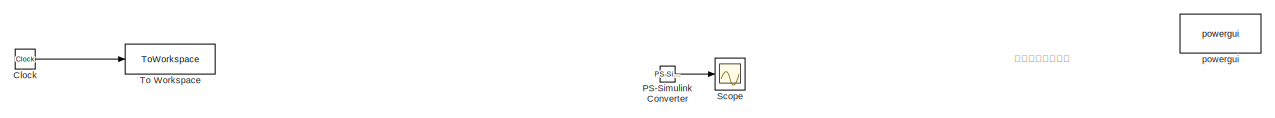
[diagram: root canvas - part 1/5, top left region]
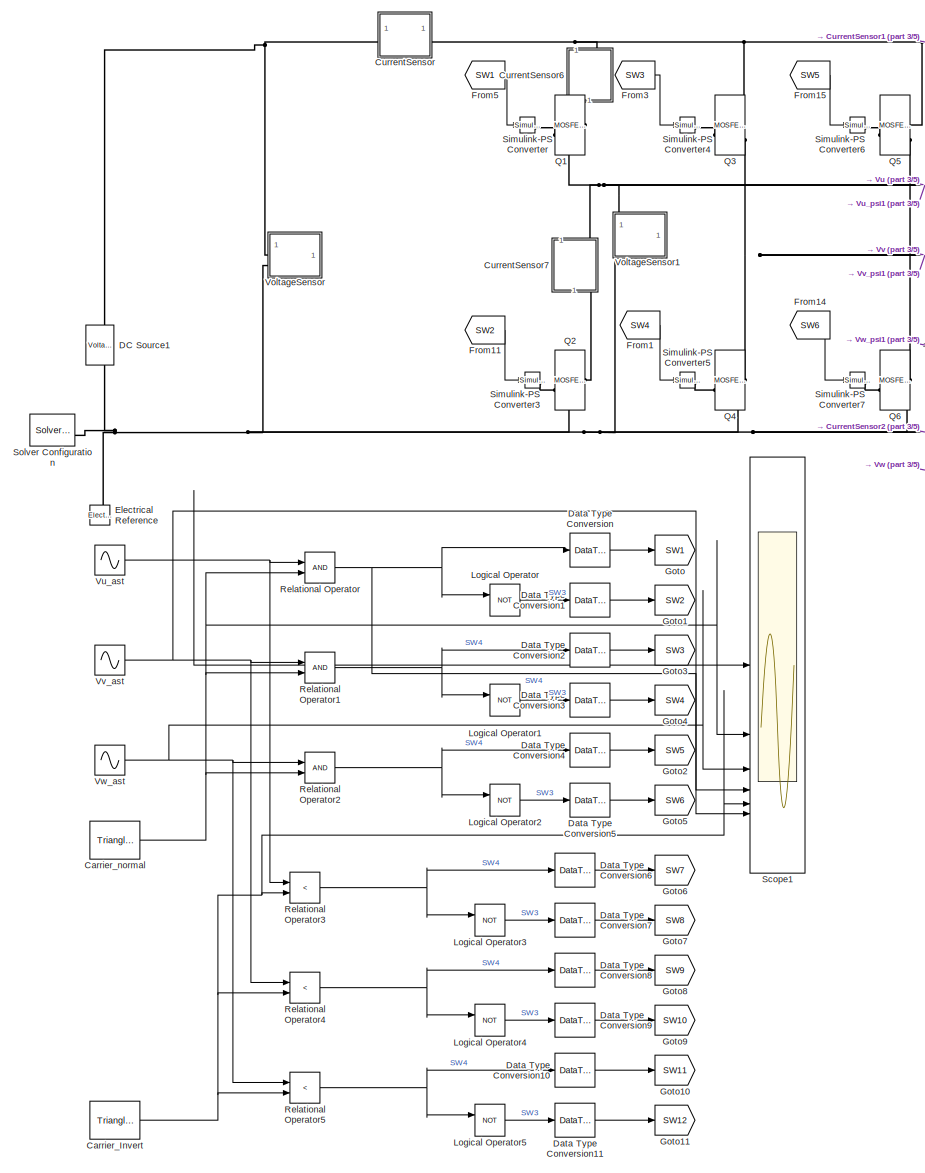
[diagram: root canvas - part 2/5, left side, full height]
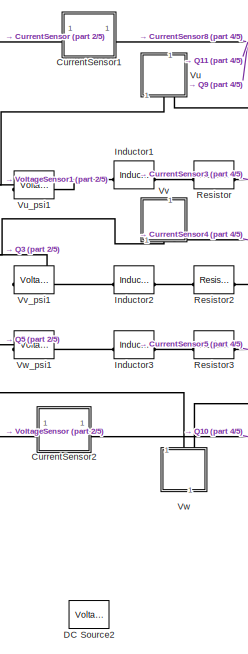
[diagram: root canvas - part 3/5, central region]
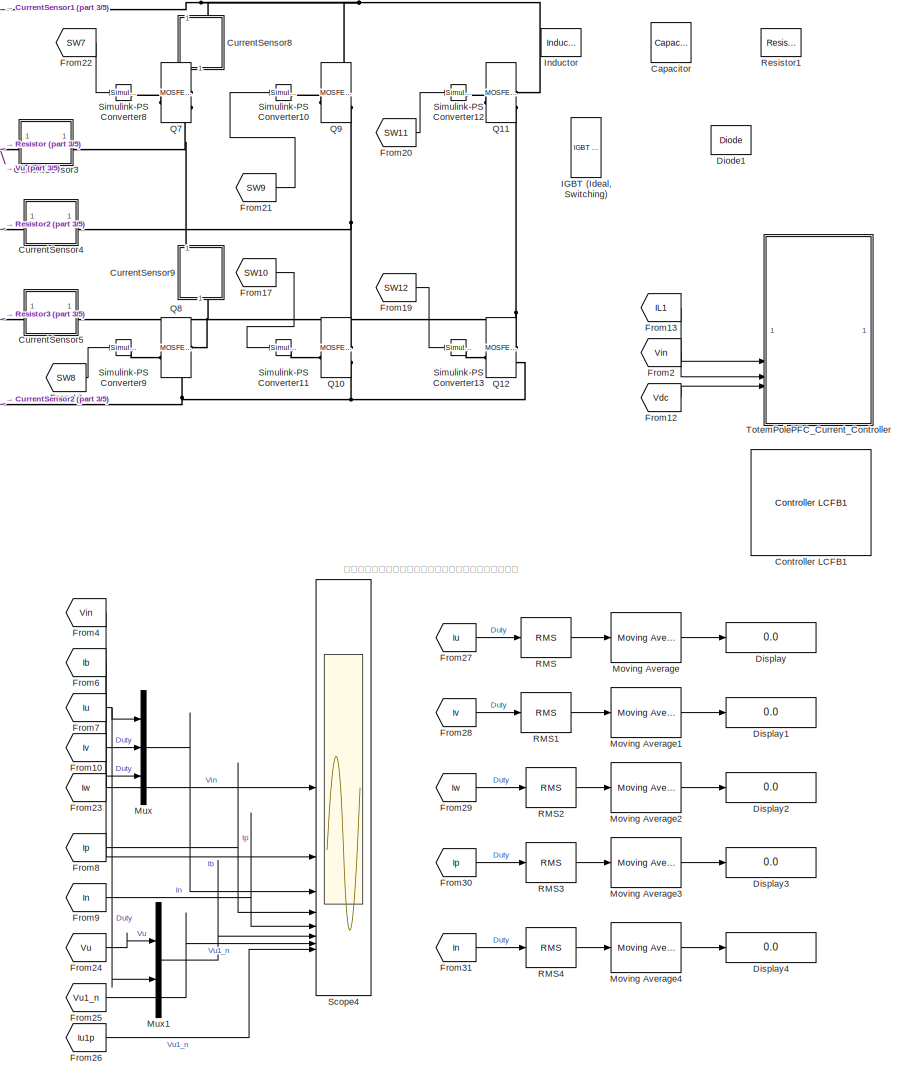
[diagram: root canvas - part 4/5, right side, full height]
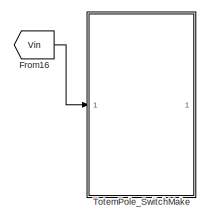
[diagram: root canvas - part 5/5, middle right region]
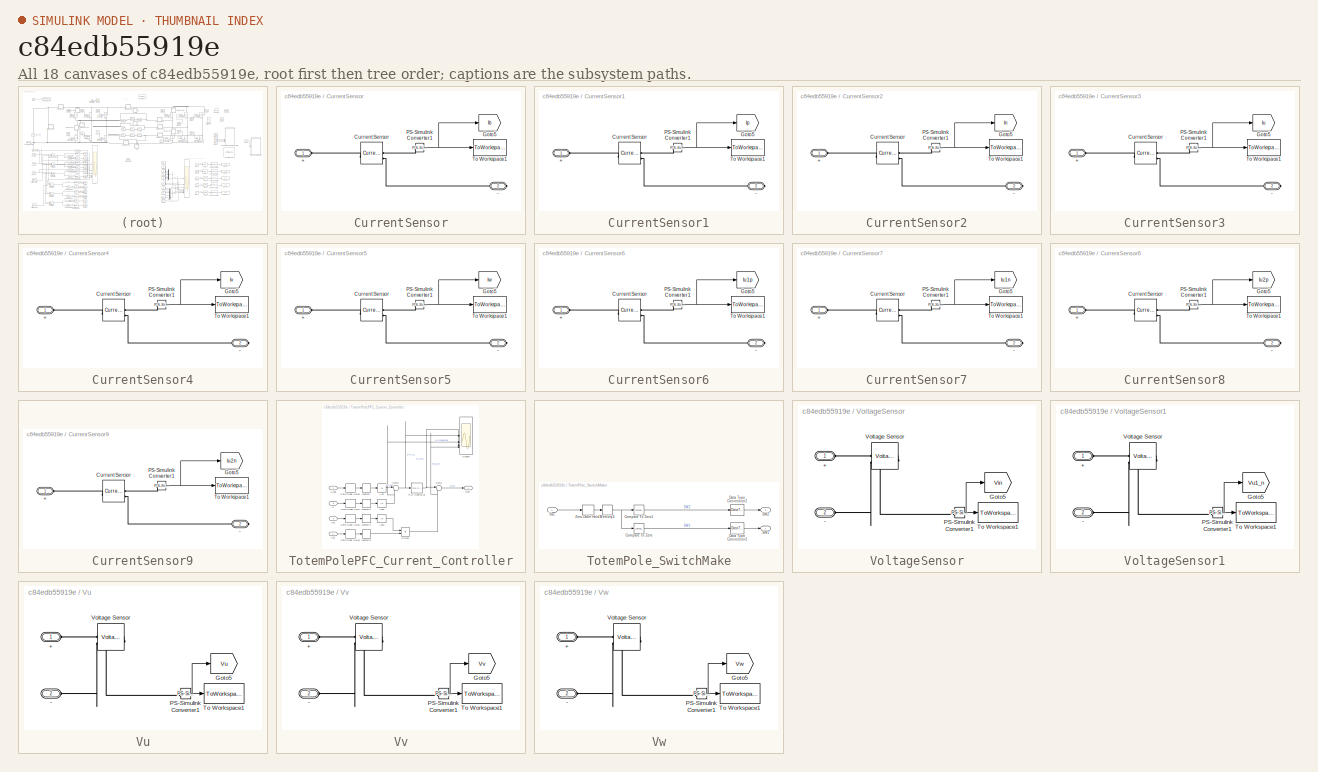
[diagram: thumbnail index - all 18 canvases of the model, root first then tree order]
MODEL slx_c84edb55919e
KIND model
CONFIG AbsTol = 1e-3
CONFIG EnableMultiTasking = on
CONFIG FixedStep = auto
CONFIG MaxStep = auto
CONFIG MinStep = auto
CONFIG RelTol = 1e-3
CONFIG SampleTimeConstraint = Unconstrained
CONFIG SolverName = VariableStepAuto
CONFIG StartTime = 0.0
CONFIG StopTime = 0.2
BLOCK [Reference] Capacitor  REF=ee_lib/Passive/Capacitor
  AttributesFormatString = %<c> H
  Commented = on
  SourceBlock = ee_lib/Passive/Capacitor
  SourceType = Capacitor
BLOCK [Reference] Carrier_Invert  REF=spsTriangleGeneratorLib/Triangle
Generator
  AttributesFormatString = Freq = %<Freq> Hz
  SourceBlock = spsTriangleGeneratorLib/Triangle\nGenerator
  SourceType = Triangle Generator
BLOCK [Reference] Carrier_normal  REF=spsTriangleGeneratorLib/Triangle
Generator
  AttributesFormatString = Freq = %<Freq> Hz
  SourceBlock = spsTriangleGeneratorLib/Triangle\nGenerator
  SourceType = Triangle Generator
BLOCK [Clock] Clock
BLOCK [Reference] Controller LCFB1  REF=eeLCFB1/Controller LCFB1
  Commented = on
  LibrarySourceBlock = ee_sl_lib/Turbine-Governors/Controller LCFB1
  SourceBlock = eeLCFB1/Controller LCFB1
  SourceType = Controller LCFB1
BLOCK [SubSystem] CurrentSensor
  AttributesFormatString = %<Var>
BLOCK [PMIOPort] CurrentSensor/+
  Side = Left
BLOCK [PMIOPort] CurrentSensor/-
  Port = 2
  Side = Right
BLOCK [Reference] CurrentSensor/Current Sensor  REF=fl_lib/Electrical/Electrical Sensors/Current Sensor
  SourceBlock = fl_lib/Electrical/Electrical Sensors/Current Sensor
  SourceType = Current Sensor
BLOCK [Goto] CurrentSensor/Goto5
  GotoTag = Ib
  TagVisibility = global
BLOCK [Reference] CurrentSensor/PS-Simulink Converter1  REF=nesl_utility/PS-Simulink
Converter
  SourceBlock = nesl_utility/PS-Simulink\nConverter
  SourceType = PS-Simulink\nConverter
BLOCK [ToWorkspace] CurrentSensor/To Workspace1
  FixptAsFi = on
  MaxDataPoints = inf
  SampleTime = SampleTime
  VariableName = Ib
BLOCK [SubSystem] CurrentSensor1
  AttributesFormatString = %<Var>
BLOCK [PMIOPort] CurrentSensor1/+
  Side = Left
BLOCK [PMIOPort] CurrentSensor1/-
  Port = 2
  Side = Right
BLOCK [Reference] CurrentSensor1/Current Sensor  REF=fl_lib/Electrical/Electrical Sensors/Current Sensor
  SourceBlock = fl_lib/Electrical/Electrical Sensors/Current Sensor
  SourceType = Current Sensor
BLOCK [Goto] CurrentSensor1/Goto5
  GotoTag = Ip
  TagVisibility = global
BLOCK [Reference] CurrentSensor1/PS-Simulink Converter1  REF=nesl_utility/PS-Simulink
Converter
  SourceBlock = nesl_utility/PS-Simulink\nConverter
  SourceType = PS-Simulink\nConverter
BLOCK [ToWorkspace] CurrentSensor1/To Workspace1
  FixptAsFi = on
  MaxDataPoints = inf
  SampleTime = SampleTime
  VariableName = Ip
BLOCK [SubSystem] CurrentSensor2
  AttributesFormatString = %<Var>
  NameLocation = top
BLOCK [PMIOPort] CurrentSensor2/+
  Side = Left
BLOCK [PMIOPort] CurrentSensor2/-
  Port = 2
  Side = Right
BLOCK [Reference] CurrentSensor2/Current Sensor  REF=fl_lib/Electrical/Electrical Sensors/Current Sensor
  SourceBlock = fl_lib/Electrical/Electrical Sensors/Current Sensor
  SourceType = Current Sensor
BLOCK [Goto] CurrentSensor2/Goto5
  GotoTag = In
  TagVisibility = global
BLOCK [Reference] CurrentSensor2/PS-Simulink Converter1  REF=nesl_utility/PS-Simulink
Converter
  SourceBlock = nesl_utility/PS-Simulink\nConverter
  SourceType = PS-Simulink\nConverter
BLOCK [ToWorkspace] CurrentSensor2/To Workspace1
  FixptAsFi = on
  MaxDataPoints = inf
  SampleTime = SampleTime
  VariableName = In
BLOCK [SubSystem] CurrentSensor3
  AttributesFormatString = %<Var>
BLOCK [PMIOPort] CurrentSensor3/+
  Side = Left
BLOCK [PMIOPort] CurrentSensor3/-
  Port = 2
  Side = Right
BLOCK [Reference] CurrentSensor3/Current Sensor  REF=fl_lib/Electrical/Electrical Sensors/Current Sensor
  SourceBlock = fl_lib/Electrical/Electrical Sensors/Current Sensor
  SourceType = Current Sensor
BLOCK [Goto] CurrentSensor3/Goto5
  GotoTag = Iu
  TagVisibility = global
BLOCK [Reference] CurrentSensor3/PS-Simulink Converter1  REF=nesl_utility/PS-Simulink
Converter
  SourceBlock = nesl_utility/PS-Simulink\nConverter
  SourceType = PS-Simulink\nConverter
BLOCK [ToWorkspace] CurrentSensor3/To Workspace1
  FixptAsFi = on
  MaxDataPoints = inf
  SampleTime = SampleTime
  VariableName = Iu
BLOCK [SubSystem] CurrentSensor4
  AttributesFormatString = %<Var>
BLOCK [PMIOPort] CurrentSensor4/+
  Side = Left
BLOCK [PMIOPort] CurrentSensor4/-
  Port = 2
  Side = Right
BLOCK [Reference] CurrentSensor4/Current Sensor  REF=fl_lib/Electrical/Electrical Sensors/Current Sensor
  SourceBlock = fl_lib/Electrical/Electrical Sensors/Current Sensor
  SourceType = Current Sensor
BLOCK [Goto] CurrentSensor4/Goto5
  GotoTag = Iv
  TagVisibility = global
BLOCK [Reference] CurrentSensor4/PS-Simulink Converter1  REF=nesl_utility/PS-Simulink
Converter
  SourceBlock = nesl_utility/PS-Simulink\nConverter
  SourceType = PS-Simulink\nConverter
BLOCK [ToWorkspace] CurrentSensor4/To Workspace1
  FixptAsFi = on
  MaxDataPoints = inf
  SampleTime = SampleTime
  VariableName = Iv
BLOCK [SubSystem] CurrentSensor5
  AttributesFormatString = %<Var>
BLOCK [PMIOPort] CurrentSensor5/+
  Side = Left
BLOCK [PMIOPort] CurrentSensor5/-
  Port = 2
  Side = Right
BLOCK [Reference] CurrentSensor5/Current Sensor  REF=fl_lib/Electrical/Electrical Sensors/Current Sensor
  SourceBlock = fl_lib/Electrical/Electrical Sensors/Current Sensor
  SourceType = Current Sensor
BLOCK [Goto] CurrentSensor5/Goto5
  GotoTag = Iw
  TagVisibility = global
BLOCK [Reference] CurrentSensor5/PS-Simulink Converter1  REF=nesl_utility/PS-Simulink
Converter
  SourceBlock = nesl_utility/PS-Simulink\nConverter
  SourceType = PS-Simulink\nConverter
BLOCK [ToWorkspace] CurrentSensor5/To Workspace1
  FixptAsFi = on
  MaxDataPoints = inf
  SampleTime = SampleTime
  VariableName = Iw
BLOCK [SubSystem] CurrentSensor6
  AttributesFormatString = %<Var>
  NameLocation = left
BLOCK [PMIOPort] CurrentSensor6/+
  Side = Left
BLOCK [PMIOPort] CurrentSensor6/-
  Port = 2
  Side = Right
BLOCK [Reference] CurrentSensor6/Current Sensor  REF=fl_lib/Electrical/Electrical Sensors/Current Sensor
  SourceBlock = fl_lib/Electrical/Electrical Sensors/Current Sensor
  SourceType = Current Sensor
BLOCK [Goto] CurrentSensor6/Goto5
  GotoTag = Iu1p
  TagVisibility = global
BLOCK [Reference] CurrentSensor6/PS-Simulink Converter1  REF=nesl_utility/PS-Simulink
Converter
  SourceBlock = nesl_utility/PS-Simulink\nConverter
  SourceType = PS-Simulink\nConverter
BLOCK [ToWorkspace] CurrentSensor6/To Workspace1
  FixptAsFi = on
  MaxDataPoints = inf
  SampleTime = SampleTime
  VariableName = Iu1p
BLOCK [SubSystem] CurrentSensor7
  AttributesFormatString = %<Var>
  NameLocation = left
BLOCK [PMIOPort] CurrentSensor7/+
  Side = Left
BLOCK [PMIOPort] CurrentSensor7/-
  Port = 2
  Side = Right
BLOCK [Reference] CurrentSensor7/Current Sensor  REF=fl_lib/Electrical/Electrical Sensors/Current Sensor
  SourceBlock = fl_lib/Electrical/Electrical Sensors/Current Sensor
  SourceType = Current Sensor
BLOCK [Goto] CurrentSensor7/Goto5
  GotoTag = Iu1n
  TagVisibility = global
BLOCK [Reference] CurrentSensor7/PS-Simulink Converter1  REF=nesl_utility/PS-Simulink
Converter
  SourceBlock = nesl_utility/PS-Simulink\nConverter
  SourceType = PS-Simulink\nConverter
BLOCK [ToWorkspace] CurrentSensor7/To Workspace1
  FixptAsFi = on
  MaxDataPoints = inf
  SampleTime = SampleTime
  VariableName = Iu1n
BLOCK [SubSystem] CurrentSensor8
  AttributesFormatString = %<Var>
  NameLocation = left
BLOCK [PMIOPort] CurrentSensor8/+
  Side = Left
BLOCK [PMIOPort] CurrentSensor8/-
  Port = 2
  Side = Right
BLOCK [Reference] CurrentSensor8/Current Sensor  REF=fl_lib/Electrical/Electrical Sensors/Current Sensor
  SourceBlock = fl_lib/Electrical/Electrical Sensors/Current Sensor
  SourceType = Current Sensor
BLOCK [Goto] CurrentSensor8/Goto5
  GotoTag = Iu2p
  TagVisibility = global
BLOCK [Reference] CurrentSensor8/PS-Simulink Converter1  REF=nesl_utility/PS-Simulink
Converter
  SourceBlock = nesl_utility/PS-Simulink\nConverter
  SourceType = PS-Simulink\nConverter
BLOCK [ToWorkspace] CurrentSensor8/To Workspace1
  FixptAsFi = on
  MaxDataPoints = inf
  SampleTime = SampleTime
  VariableName = Iu2p
BLOCK [SubSystem] CurrentSensor9
  AttributesFormatString = %<Var>
  NameLocation = left
BLOCK [PMIOPort] CurrentSensor9/+
  Side = Left
BLOCK [PMIOPort] CurrentSensor9/-
  Port = 2
  Side = Right
BLOCK [Reference] CurrentSensor9/Current Sensor  REF=fl_lib/Electrical/Electrical Sensors/Current Sensor
  SourceBlock = fl_lib/Electrical/Electrical Sensors/Current Sensor
  SourceType = Current Sensor
BLOCK [Goto] CurrentSensor9/Goto5
  GotoTag = Iu2n
  TagVisibility = global
BLOCK [Reference] CurrentSensor9/PS-Simulink Converter1  REF=nesl_utility/PS-Simulink
Converter
  SourceBlock = nesl_utility/PS-Simulink\nConverter
  SourceType = PS-Simulink\nConverter
BLOCK [ToWorkspace] CurrentSensor9/To Workspace1
  FixptAsFi = on
  MaxDataPoints = inf
  SampleTime = SampleTime
  VariableName = Iu2n
BLOCK [Reference] DC Source1  REF=ee_lib/Sources/Voltage Source
  AttributesFormatString = %<dc_voltage> V
  NameLocation = right
  SourceBlock = ee_lib/Sources/Voltage Source
  SourceType = Voltage Source
BLOCK [Reference] DC Source2  REF=ee_lib/Sources/Voltage Source
  AttributesFormatString = %<dc_voltage> V
  NameLocation = top
  SourceBlock = ee_lib/Sources/Voltage Source
  SourceType = Voltage Source
BLOCK [DataTypeConversion] Data Type Conversion
  RndMeth = Floor
  SaturateOnIntegerOverflow = off
BLOCK [DataTypeConversion] Data Type Conversion1
  RndMeth = Floor
  SaturateOnIntegerOverflow = off
BLOCK [DataTypeConversion] Data Type Conversion10
  RndMeth = Floor
  SaturateOnIntegerOverflow = off
BLOCK [DataTypeConversion] Data Type Conversion11
  RndMeth = Floor
  SaturateOnIntegerOverflow = off
BLOCK [DataTypeConversion] Data Type Conversion2
  RndMeth = Floor
  SaturateOnIntegerOverflow = off
BLOCK [DataTypeConversion] Data Type Conversion3
  RndMeth = Floor
  SaturateOnIntegerOverflow = off
BLOCK [DataTypeConversion] Data Type Conversion4
  RndMeth = Floor
  SaturateOnIntegerOverflow = off
BLOCK [DataTypeConversion] Data Type Conversion5
  RndMeth = Floor
  SaturateOnIntegerOverflow = off
BLOCK [DataTypeConversion] Data Type Conversion6
  RndMeth = Floor
  SaturateOnIntegerOverflow = off
BLOCK [DataTypeConversion] Data Type Conversion7
  RndMeth = Floor
  SaturateOnIntegerOverflow = off
BLOCK [DataTypeConversion] Data Type Conversion8
  RndMeth = Floor
  SaturateOnIntegerOverflow = off
BLOCK [DataTypeConversion] Data Type Conversion9
  RndMeth = Floor
  SaturateOnIntegerOverflow = off
BLOCK [Reference] Diode1  REF=ee_lib/Semiconductors &
Converters/Diode
  Commented = on
  SourceBlock = ee_lib/Semiconductors &\nConverters/Diode
  SourceType = Diode
BLOCK [Display] Display
  Decimation = 1
BLOCK [Display] Display1
  Decimation = 1
BLOCK [Display] Display2
  Decimation = 1
BLOCK [Display] Display3
  Decimation = 1
BLOCK [Display] Display4
  Decimation = 1
BLOCK [Reference] Electrical Reference  REF=fl_lib/Electrical/Electrical Elements/Electrical Reference
  NameLocation = right
  SourceBlock = fl_lib/Electrical/Electrical Elements/Electrical Reference
  SourceType = Electrical Reference
BLOCK [From] From1
  GotoTag = SW4
BLOCK [From] From10
  GotoTag = Iv
  TagVisibility = global
BLOCK [From] From11
  GotoTag = SW2
BLOCK [From] From12
  Commented = on
  GotoTag = Vdc
  TagVisibility = global
BLOCK [From] From13
  Commented = on
  GotoTag = IL1
  TagVisibility = global
BLOCK [From] From14
  GotoTag = SW6
BLOCK [From] From15
  GotoTag = SW5
BLOCK [From] From16
  Commented = on
  GotoTag = Vin
  TagVisibility = global
BLOCK [From] From17
  GotoTag = SW10
BLOCK [From] From18
  GotoTag = SW8
BLOCK [From] From19
  GotoTag = SW12
BLOCK [From] From2
  Commented = on
  GotoTag = Vin
  TagVisibility = global
BLOCK [From] From20
  GotoTag = SW11
BLOCK [From] From21
  GotoTag = SW9
BLOCK [From] From22
  GotoTag = SW7
BLOCK [From] From23
  GotoTag = Iw
  TagVisibility = global
BLOCK [From] From24
  GotoTag = Vu
  TagVisibility = global
BLOCK [From] From25
  GotoTag = Vu1_n
  TagVisibility = global
BLOCK [From] From26
  GotoTag = Iu1p
  TagVisibility = global
BLOCK [From] From27
  GotoTag = Iu
  TagVisibility = global
BLOCK [From] From28
  GotoTag = Iv
  TagVisibility = global
BLOCK [From] From29
  GotoTag = Iw
  TagVisibility = global
BLOCK [From] From3
  GotoTag = SW3
BLOCK [From] From30
  GotoTag = Ip
  TagVisibility = global
BLOCK [From] From31
  GotoTag = In
  TagVisibility = global
BLOCK [From] From4
  GotoTag = Vin
  TagVisibility = global
BLOCK [From] From5
  GotoTag = SW1
BLOCK [From] From6
  GotoTag = Ib
  TagVisibility = global
BLOCK [From] From7
  GotoTag = Iu
  TagVisibility = global
BLOCK [From] From8
  GotoTag = Ip
  TagVisibility = global
BLOCK [From] From9
  GotoTag = In
  TagVisibility = global
BLOCK [Goto] Goto
  GotoTag = SW1
BLOCK [Goto] Goto1
  GotoTag = SW2
BLOCK [Goto] Goto10
  GotoTag = SW11
BLOCK [Goto] Goto11
  GotoTag = SW12
BLOCK [Goto] Goto2
  GotoTag = SW5
BLOCK [Goto] Goto3
  GotoTag = SW3
BLOCK [Goto] Goto4
  GotoTag = SW4
BLOCK [Goto] Goto5
  GotoTag = SW6
BLOCK [Goto] Goto6
  GotoTag = SW7
BLOCK [Goto] Goto7
  GotoTag = SW8
BLOCK [Goto] Goto8
  GotoTag = SW9
BLOCK [Goto] Goto9
  GotoTag = SW10
BLOCK [Reference] IGBT (Ideal, Switching)  REF=ee_lib/Semiconductors &
Converters/IGBT
(Ideal,
Switching)
  Commented = on
  SourceBlock = ee_lib/Semiconductors &\nConverters/IGBT\n(Ideal,\nSwitching)
  SourceType = IGBT\n(Ideal,\nSwitching)
BLOCK [Reference] Inductor  REF=ee_lib/Passive/Inductor
  AttributesFormatString = %<l> H
  Commented = on
  SourceBlock = ee_lib/Passive/Inductor
  SourceType = Inductor
BLOCK [Reference] Inductor1  REF=ee_lib/Passive/Inductor
  AttributesFormatString = %<l> H
  SourceBlock = ee_lib/Passive/Inductor
  SourceType = Inductor
BLOCK [Reference] Inductor2  REF=ee_lib/Passive/Inductor
  AttributesFormatString = %<l> H
  SourceBlock = ee_lib/Passive/Inductor
  SourceType = Inductor
BLOCK [Reference] Inductor3  REF=ee_lib/Passive/Inductor
  AttributesFormatString = %<l> H
  SourceBlock = ee_lib/Passive/Inductor
  SourceType = Inductor
BLOCK [Logic] Logical Operator
  AllPortsSameDT = off
  Operator = NOT
  OutDataTypeStr = boolean
BLOCK [Logic] Logical Operator1
  AllPortsSameDT = off
  Operator = NOT
  OutDataTypeStr = boolean
BLOCK [Logic] Logical Operator2
  AllPortsSameDT = off
  Operator = NOT
  OutDataTypeStr = boolean
BLOCK [Logic] Logical Operator3
  AllPortsSameDT = off
  Operator = NOT
  OutDataTypeStr = boolean
BLOCK [Logic] Logical Operator4
  AllPortsSameDT = off
  Operator = NOT
  OutDataTypeStr = boolean
BLOCK [Logic] Logical Operator5
  AllPortsSameDT = off
  Operator = NOT
  OutDataTypeStr = boolean
BLOCK [Reference] Moving Average  REF=eeGeneralControl/Moving Average
  LibrarySourceBlock = ee_sl_lib/General Control/Moving Average
  SourceBlock = eeGeneralControl/Moving Average
  SourceType = Moving Average
BLOCK [Reference] Moving Average1  REF=eeGeneralControl/Moving Average
  LibrarySourceBlock = ee_sl_lib/General Control/Moving Average
  SourceBlock = eeGeneralControl/Moving Average
  SourceType = Moving Average
BLOCK [Reference] Moving Average2  REF=eeGeneralControl/Moving Average
  LibrarySourceBlock = ee_sl_lib/General Control/Moving Average
  SourceBlock = eeGeneralControl/Moving Average
  SourceType = Moving Average
BLOCK [Reference] Moving Average3  REF=eeGeneralControl/Moving Average
  LibrarySourceBlock = ee_sl_lib/General Control/Moving Average
  SourceBlock = eeGeneralControl/Moving Average
  SourceType = Moving Average
BLOCK [Reference] Moving Average4  REF=eeGeneralControl/Moving Average
  LibrarySourceBlock = ee_sl_lib/General Control/Moving Average
  SourceBlock = eeGeneralControl/Moving Average
  SourceType = Moving Average
BLOCK [Mux] Mux
  DisplayOption = bar
  Inputs = 3
BLOCK [Mux] Mux1
  DisplayOption = bar
  Inputs = 2
BLOCK [Reference] PS-Simulink Converter  REF=nesl_utility/PS-Simulink
Converter
  Commented = on
  SourceBlock = nesl_utility/PS-Simulink\nConverter
  SourceType = PS-Simulink\nConverter
BLOCK [Reference] Q1  REF=ee_lib/Semiconductors &
Converters/MOSFET
(Ideal,
Switching)
  SourceBlock = ee_lib/Semiconductors &\nConverters/MOSFET\n(Ideal,\nSwitching)
  SourceType = MOSFET\n(Ideal,\nSwitching)
BLOCK [Reference] Q10  REF=ee_lib/Semiconductors &
Converters/MOSFET
(Ideal,
Switching)
  SourceBlock = ee_lib/Semiconductors &\nConverters/MOSFET\n(Ideal,\nSwitching)
  SourceType = MOSFET\n(Ideal,\nSwitching)
BLOCK [Reference] Q11  REF=ee_lib/Semiconductors &
Converters/MOSFET
(Ideal,
Switching)
  SourceBlock = ee_lib/Semiconductors &\nConverters/MOSFET\n(Ideal,\nSwitching)
  SourceType = MOSFET\n(Ideal,\nSwitching)
BLOCK [Reference] Q12  REF=ee_lib/Semiconductors &
Converters/MOSFET
(Ideal,
Switching)
  SourceBlock = ee_lib/Semiconductors &\nConverters/MOSFET\n(Ideal,\nSwitching)
  SourceType = MOSFET\n(Ideal,\nSwitching)
BLOCK [Reference] Q2  REF=ee_lib/Semiconductors &
Converters/MOSFET
(Ideal,
Switching)
  SourceBlock = ee_lib/Semiconductors &\nConverters/MOSFET\n(Ideal,\nSwitching)
  SourceType = MOSFET\n(Ideal,\nSwitching)
BLOCK [Reference] Q3  REF=ee_lib/Semiconductors &
Converters/MOSFET
(Ideal,
Switching)
  SourceBlock = ee_lib/Semiconductors &\nConverters/MOSFET\n(Ideal,\nSwitching)
  SourceType = MOSFET\n(Ideal,\nSwitching)
BLOCK [Reference] Q4  REF=ee_lib/Semiconductors &
Converters/MOSFET
(Ideal,
Switching)
  SourceBlock = ee_lib/Semiconductors &\nConverters/MOSFET\n(Ideal,\nSwitching)
  SourceType = MOSFET\n(Ideal,\nSwitching)
BLOCK [Reference] Q5  REF=ee_lib/Semiconductors &
Converters/MOSFET
(Ideal,
Switching)
  SourceBlock = ee_lib/Semiconductors &\nConverters/MOSFET\n(Ideal,\nSwitching)
  SourceType = MOSFET\n(Ideal,\nSwitching)
BLOCK [Reference] Q6  REF=ee_lib/Semiconductors &
Converters/MOSFET
(Ideal,
Switching)
  SourceBlock = ee_lib/Semiconductors &\nConverters/MOSFET\n(Ideal,\nSwitching)
  SourceType = MOSFET\n(Ideal,\nSwitching)
BLOCK [Reference] Q7  REF=ee_lib/Semiconductors &
Converters/MOSFET
(Ideal,
Switching)
  SourceBlock = ee_lib/Semiconductors &\nConverters/MOSFET\n(Ideal,\nSwitching)
  SourceType = MOSFET\n(Ideal,\nSwitching)
BLOCK [Reference] Q8  REF=ee_lib/Semiconductors &
Converters/MOSFET
(Ideal,
Switching)
  SourceBlock = ee_lib/Semiconductors &\nConverters/MOSFET\n(Ideal,\nSwitching)
  SourceType = MOSFET\n(Ideal,\nSwitching)
BLOCK [Reference] Q9  REF=ee_lib/Semiconductors &
Converters/MOSFET
(Ideal,
Switching)
  SourceBlock = ee_lib/Semiconductors &\nConverters/MOSFET\n(Ideal,\nSwitching)
  SourceType = MOSFET\n(Ideal,\nSwitching)
BLOCK [Reference] RMS  REF=spsRMSLib/RMS
  LibrarySourceBlock = sps_lib/Sensors and Measurements/RMS
  SourceBlock = spsRMSLib/RMS
  SourceType = RMS
BLOCK [Reference] RMS1  REF=spsRMSLib/RMS
  LibrarySourceBlock = sps_lib/Sensors and Measurements/RMS
  SourceBlock = spsRMSLib/RMS
  SourceType = RMS
BLOCK [Reference] RMS2  REF=spsRMSLib/RMS
  LibrarySourceBlock = sps_lib/Sensors and Measurements/RMS
  SourceBlock = spsRMSLib/RMS
  SourceType = RMS
BLOCK [Reference] RMS3  REF=spsRMSLib/RMS
  LibrarySourceBlock = sps_lib/Sensors and Measurements/RMS
  SourceBlock = spsRMSLib/RMS
  SourceType = RMS
BLOCK [Reference] RMS4  REF=spsRMSLib/RMS
  LibrarySourceBlock = sps_lib/Sensors and Measurements/RMS
  SourceBlock = spsRMSLib/RMS
  SourceType = RMS
BLOCK [RelationalOperator] Relational Operator
  InputSameDT = off
  OutDataTypeStr = boolean
  RndMeth = Simplest
BLOCK [RelationalOperator] Relational Operator1
  InputSameDT = off
  OutDataTypeStr = boolean
  RndMeth = Simplest
BLOCK [RelationalOperator] Relational Operator2
  InputSameDT = off
  OutDataTypeStr = boolean
  RndMeth = Simplest
BLOCK [RelationalOperator] Relational Operator3
  InputSameDT = off
  Operator = <
  OutDataTypeStr = boolean
  RndMeth = Simplest
BLOCK [RelationalOperator] Relational Operator4
  InputSameDT = off
  Operator = <
  OutDataTypeStr = boolean
  RndMeth = Simplest
BLOCK [RelationalOperator] Relational Operator5
  InputSameDT = off
  Operator = <
  OutDataTypeStr = boolean
  RndMeth = Simplest
BLOCK [Reference] Resistor  REF=ee_lib/Passive/Resistor
  AttributesFormatString = %<R> Ohms
  SourceBlock = ee_lib/Passive/Resistor
  SourceType = Resistor
BLOCK [Reference] Resistor1  REF=ee_lib/Passive/Resistor
  AttributesFormatString = %<R> Ohms
  Commented = on
  SourceBlock = ee_lib/Passive/Resistor
  SourceType = Resistor
BLOCK [Reference] Resistor2  REF=ee_lib/Passive/Resistor
  AttributesFormatString = %<R> Ohms
  SourceBlock = ee_lib/Passive/Resistor
  SourceType = Resistor
BLOCK [Reference] Resistor3  REF=ee_lib/Passive/Resistor
  AttributesFormatString = %<R> Ohms
  SourceBlock = ee_lib/Passive/Resistor
  SourceType = Resistor
BLOCK [Scope] Scope
  Commented = on
  Floating = off
  NumInputPorts = 1
  ScopeSpecificationString = Simulink.scopes.TimeScopeBlockCfg('CurrentConfiguration', extmgr.ConfigurationSet(extmgr.Configuration('Core','General UI',true),extmgr.Configuration('Core','Source UI',true),extmgr.Configuration('Sources','WiredSimulink',true,'DataLoggingVariableName','ScopeData1'),extmgr.Configuration('Visuals','Time Domain',true),extmgr.Configuration('Tools','Plot Navigation',true),extmgr.Configuration('Tools',...<+40ch>
BLOCK [Scope] Scope1
  Floating = off
  NumInputPorts = 8
  ScopeSpecificationString = Simulink.scopes.TimeScopeBlockCfg('CurrentConfiguration', extmgr.ConfigurationSet(extmgr.Configuration('Core','General UI',true),extmgr.Configuration('Core','Source UI',true),extmgr.Configuration('Sources','WiredSimulink',true,'DataLoggingMaxPoints','10000','DataLoggingVariableName','ScopeData1'),extmgr.Configuration('Visuals','Time Domain',true,'SerializedDisplays',{struct('MinYLimReal','-1.125',...<+6261ch>
BLOCK [Scope] Scope4
  Floating = off
  NumInputPorts = 8
  ScopeSpecificationString = Simulink.scopes.TimeScopeBlockCfg('CurrentConfiguration', extmgr.ConfigurationSet(extmgr.Configuration('Core','General UI',true),extmgr.Configuration('Core','Source UI',true),extmgr.Configuration('Sources','WiredSimulink',true,'DataLoggingMaxPoints','10000','DataLoggingVariableName','ScopeData1'),extmgr.Configuration('Visuals','Time Domain',true,'SerializedDisplays',{struct('MinYLimReal','700.0000...<+6288ch>
BLOCK [Reference] Simulink-PS Converter  REF=nesl_utility/Simulink-PS
Converter
  SourceBlock = nesl_utility/Simulink-PS\nConverter
  SourceType = Simulink-PS\nConverter
BLOCK [Reference] Simulink-PS Converter10  REF=nesl_utility/Simulink-PS
Converter
  SourceBlock = nesl_utility/Simulink-PS\nConverter
  SourceType = Simulink-PS\nConverter
BLOCK [Reference] Simulink-PS Converter11  REF=nesl_utility/Simulink-PS
Converter
  SourceBlock = nesl_utility/Simulink-PS\nConverter
  SourceType = Simulink-PS\nConverter
BLOCK [Reference] Simulink-PS Converter12  REF=nesl_utility/Simulink-PS
Converter
  SourceBlock = nesl_utility/Simulink-PS\nConverter
  SourceType = Simulink-PS\nConverter
BLOCK [Reference] Simulink-PS Converter13  REF=nesl_utility/Simulink-PS
Converter
  SourceBlock = nesl_utility/Simulink-PS\nConverter
  SourceType = Simulink-PS\nConverter
BLOCK [Reference] Simulink-PS Converter3  REF=nesl_utility/Simulink-PS
Converter
  SourceBlock = nesl_utility/Simulink-PS\nConverter
  SourceType = Simulink-PS\nConverter
BLOCK [Reference] Simulink-PS Converter4  REF=nesl_utility/Simulink-PS
Converter
  SourceBlock = nesl_utility/Simulink-PS\nConverter
  SourceType = Simulink-PS\nConverter
BLOCK [Reference] Simulink-PS Converter5  REF=nesl_utility/Simulink-PS
Converter
  SourceBlock = nesl_utility/Simulink-PS\nConverter
  SourceType = Simulink-PS\nConverter
BLOCK [Reference] Simulink-PS Converter6  REF=nesl_utility/Simulink-PS
Converter
  SourceBlock = nesl_utility/Simulink-PS\nConverter
  SourceType = Simulink-PS\nConverter
BLOCK [Reference] Simulink-PS Converter7  REF=nesl_utility/Simulink-PS
Converter
  SourceBlock = nesl_utility/Simulink-PS\nConverter
  SourceType = Simulink-PS\nConverter
BLOCK [Reference] Simulink-PS Converter8  REF=nesl_utility/Simulink-PS
Converter
  SourceBlock = nesl_utility/Simulink-PS\nConverter
  SourceType = Simulink-PS\nConverter
BLOCK [Reference] Simulink-PS Converter9  REF=nesl_utility/Simulink-PS
Converter
  SourceBlock = nesl_utility/Simulink-PS\nConverter
  SourceType = Simulink-PS\nConverter
BLOCK [Reference] Solver Configuration  REF=nesl_utility/Solver
Configuration
  SourceBlock = nesl_utility/Solver\nConfiguration
  SourceType = Solver\nConfiguration
BLOCK [ToWorkspace] To Workspace
  FixptAsFi = on
  MaxDataPoints = inf
  SampleTime = sample_time
  VariableName = Time
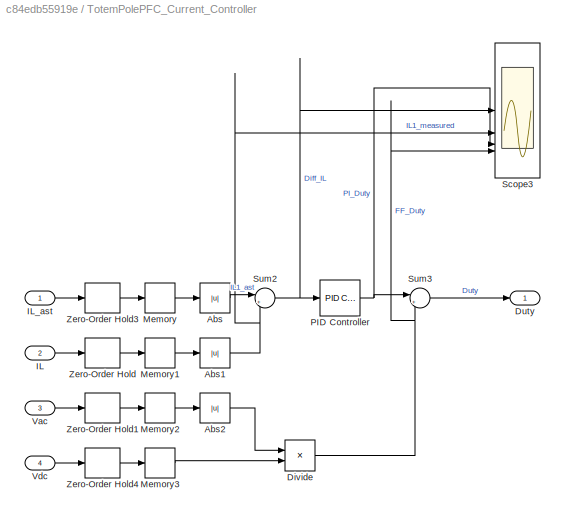
BLOCK [SubSystem] TotemPolePFC_Current_Controller
  Commented = on
BLOCK [Abs] TotemPolePFC_Current_Controller/Abs
  SaturateOnIntegerOverflow = off
BLOCK [Abs] TotemPolePFC_Current_Controller/Abs1
  SaturateOnIntegerOverflow = off
BLOCK [Abs] TotemPolePFC_Current_Controller/Abs2
  SaturateOnIntegerOverflow = off
BLOCK [Product] TotemPolePFC_Current_Controller/Divide
  Inputs = */
BLOCK [Outport] TotemPolePFC_Current_Controller/Duty
BLOCK [Inport] TotemPolePFC_Current_Controller/IL
  Port = 2
BLOCK [Inport] TotemPolePFC_Current_Controller/IL_ast
BLOCK [Memory] TotemPolePFC_Current_Controller/Memory
BLOCK [Memory] TotemPolePFC_Current_Controller/Memory1
BLOCK [Memory] TotemPolePFC_Current_Controller/Memory2
BLOCK [Memory] TotemPolePFC_Current_Controller/Memory3
BLOCK [Reference] TotemPolePFC_Current_Controller/PID Controller  REF=slpidlib/PID Controller
  SourceBlock = slpidlib/PID Controller
  SourceType = PID 1dof
BLOCK [Scope] TotemPolePFC_Current_Controller/Scope3
  Floating = off
  NumInputPorts = 8
  ScopeSpecificationString = Simulink.scopes.TimeScopeBlockCfg('CurrentConfiguration', extmgr.ConfigurationSet(extmgr.Configuration('Core','General UI',true),extmgr.Configuration('Core','Source UI',true),extmgr.Configuration('Sources','WiredSimulink',true,'DataLoggingMaxPoints','10000','DataLoggingVariableName','ScopeData2'),extmgr.Configuration('Visuals','Time Domain',true,'SerializedDisplays',{struct('MinYLimReal','-6.95617...<+6245ch>
BLOCK [Sum] TotemPolePFC_Current_Controller/Sum2
  Inputs = |+-
BLOCK [Sum] TotemPolePFC_Current_Controller/Sum3
  Inputs = |++
BLOCK [Inport] TotemPolePFC_Current_Controller/Vac
  Port = 3
BLOCK [Inport] TotemPolePFC_Current_Controller/Vdc
  Port = 4
BLOCK [ZeroOrderHold] TotemPolePFC_Current_Controller/Zero-Order Hold
  SampleTime = 1/FSW
BLOCK [ZeroOrderHold] TotemPolePFC_Current_Controller/Zero-Order Hold1
  SampleTime = 1/FSW
BLOCK [ZeroOrderHold] TotemPolePFC_Current_Controller/Zero-Order Hold3
  SampleTime = 1/FSW
BLOCK [ZeroOrderHold] TotemPolePFC_Current_Controller/Zero-Order Hold4
  SampleTime = 1/FSW
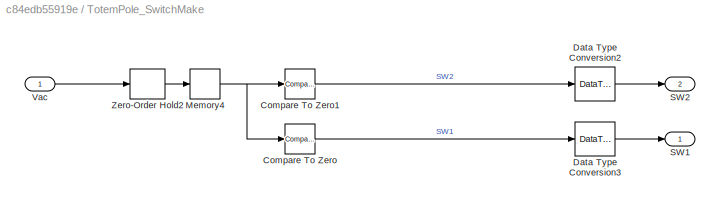
BLOCK [SubSystem] TotemPole_SwitchMake
  Commented = on
BLOCK [Reference] TotemPole_SwitchMake/Compare To Zero  REF=simulink/Logic and Bit
Operations/Compare
To Zero
  SourceBlock = simulink/Logic and Bit\nOperations/Compare\nTo Zero
  SourceType = Compare To Zero
BLOCK [Reference] TotemPole_SwitchMake/Compare To Zero1  REF=simulink/Logic and Bit
Operations/Compare
To Zero
  SourceBlock = simulink/Logic and Bit\nOperations/Compare\nTo Zero
  SourceType = Compare To Zero
BLOCK [DataTypeConversion] TotemPole_SwitchMake/Data Type Conversion2
  RndMeth = Floor
  SaturateOnIntegerOverflow = off
BLOCK [DataTypeConversion] TotemPole_SwitchMake/Data Type Conversion3
  RndMeth = Floor
  SaturateOnIntegerOverflow = off
BLOCK [Memory] TotemPole_SwitchMake/Memory4
BLOCK [Outport] TotemPole_SwitchMake/SW1
BLOCK [Outport] TotemPole_SwitchMake/SW2
  Port = 2
BLOCK [Inport] TotemPole_SwitchMake/Vac
BLOCK [ZeroOrderHold] TotemPole_SwitchMake/Zero-Order Hold2
  SampleTime = 1/FSW
BLOCK [SubSystem] VoltageSensor
  AttributesFormatString = %<VariableName>
BLOCK [PMIOPort] VoltageSensor/+
  Side = Left
BLOCK [PMIOPort] VoltageSensor/-
  NameLocation = top
  Port = 2
  Side = Left
BLOCK [Goto] VoltageSensor/Goto5
  GotoTag = Vin
  TagVisibility = global
BLOCK [Reference] VoltageSensor/PS-Simulink Converter1  REF=nesl_utility/PS-Simulink
Converter
  SourceBlock = nesl_utility/PS-Simulink\nConverter
  SourceType = PS-Simulink\nConverter
BLOCK [ToWorkspace] VoltageSensor/To Workspace1
  FixptAsFi = on
  MaxDataPoints = inf
  SampleTime = SampleTime
  VariableName = Vin
BLOCK [Reference] VoltageSensor/Voltage Sensor  REF=fl_lib/Electrical/Electrical Sensors/Voltage Sensor
  NameLocation = top
  SourceBlock = fl_lib/Electrical/Electrical Sensors/Voltage Sensor
  SourceType = Voltage Sensor
BLOCK [SubSystem] VoltageSensor1
  AttributesFormatString = %<VariableName>
BLOCK [PMIOPort] VoltageSensor1/+
  Side = Left
BLOCK [PMIOPort] VoltageSensor1/-
  NameLocation = top
  Port = 2
  Side = Left
BLOCK [Goto] VoltageSensor1/Goto5
  GotoTag = Vu1_n
  TagVisibility = global
BLOCK [Reference] VoltageSensor1/PS-Simulink Converter1  REF=nesl_utility/PS-Simulink
Converter
  SourceBlock = nesl_utility/PS-Simulink\nConverter
  SourceType = PS-Simulink\nConverter
BLOCK [ToWorkspace] VoltageSensor1/To Workspace1
  FixptAsFi = on
  MaxDataPoints = inf
  SampleTime = SampleTime
  VariableName = Vu1_n
BLOCK [Reference] VoltageSensor1/Voltage Sensor  REF=fl_lib/Electrical/Electrical Sensors/Voltage Sensor
  NameLocation = top
  SourceBlock = fl_lib/Electrical/Electrical Sensors/Voltage Sensor
  SourceType = Voltage Sensor
BLOCK [SubSystem] Vu
  AttributesFormatString = %<VariableName>
  NameLocation = right
BLOCK [PMIOPort] Vu/+
  Side = Left
BLOCK [PMIOPort] Vu/-
  NameLocation = top
  Port = 2
  Side = Left
BLOCK [Goto] Vu/Goto5
  GotoTag = Vu
  TagVisibility = global
BLOCK [Reference] Vu/PS-Simulink Converter1  REF=nesl_utility/PS-Simulink
Converter
  SourceBlock = nesl_utility/PS-Simulink\nConverter
  SourceType = PS-Simulink\nConverter
BLOCK [ToWorkspace] Vu/To Workspace1
  FixptAsFi = on
  MaxDataPoints = inf
  SampleTime = SampleTime
  VariableName = Vu
BLOCK [Reference] Vu/Voltage Sensor  REF=fl_lib/Electrical/Electrical Sensors/Voltage Sensor
  NameLocation = top
  SourceBlock = fl_lib/Electrical/Electrical Sensors/Voltage Sensor
  SourceType = Voltage Sensor
BLOCK [Sin] Vu_ast 
  Amplitude = Amplitude
  Frequency = 2*pi*elec_freq
  SampleTime = 0
BLOCK [Reference] Vu_psi1  REF=ee_lib/Sources/Voltage Source
  AttributesFormatString = %<dc_voltage> V
  NameLocation = top
  SourceBlock = ee_lib/Sources/Voltage Source
  SourceType = Voltage Source
BLOCK [SubSystem] Vv
  AttributesFormatString = %<VariableName>
  NameLocation = right
BLOCK [PMIOPort] Vv/+
  Side = Left
BLOCK [PMIOPort] Vv/-
  NameLocation = top
  Port = 2
  Side = Left
BLOCK [Goto] Vv/Goto5
  GotoTag = Vv
  TagVisibility = global
BLOCK [Reference] Vv/PS-Simulink Converter1  REF=nesl_utility/PS-Simulink
Converter
  SourceBlock = nesl_utility/PS-Simulink\nConverter
  SourceType = PS-Simulink\nConverter
BLOCK [ToWorkspace] Vv/To Workspace1
  FixptAsFi = on
  MaxDataPoints = inf
  SampleTime = SampleTime
  VariableName = Vv
BLOCK [Reference] Vv/Voltage Sensor  REF=fl_lib/Electrical/Electrical Sensors/Voltage Sensor
  NameLocation = top
  SourceBlock = fl_lib/Electrical/Electrical Sensors/Voltage Sensor
  SourceType = Voltage Sensor
BLOCK [Sin] Vv_ast
  Amplitude = Amplitude
  Frequency = 2*pi*elec_freq
  Phase = pi*2/3
  SampleTime = 0
BLOCK [Reference] Vv_psi1  REF=ee_lib/Sources/Voltage Source
  AttributesFormatString = %<dc_voltage> V
  NameLocation = top
  SourceBlock = ee_lib/Sources/Voltage Source
  SourceType = Voltage Source
BLOCK [SubSystem] Vw
  AttributesFormatString = %<VariableName>
  NameLocation = right
BLOCK [PMIOPort] Vw/+
  Side = Left
BLOCK [PMIOPort] Vw/-
  NameLocation = top
  Port = 2
  Side = Left
BLOCK [Goto] Vw/Goto5
  GotoTag = Vw
  TagVisibility = global
BLOCK [Reference] Vw/PS-Simulink Converter1  REF=nesl_utility/PS-Simulink
Converter
  SourceBlock = nesl_utility/PS-Simulink\nConverter
  SourceType = PS-Simulink\nConverter
BLOCK [ToWorkspace] Vw/To Workspace1
  FixptAsFi = on
  MaxDataPoints = inf
  SampleTime = SampleTime
  VariableName = Vw
BLOCK [Reference] Vw/Voltage Sensor  REF=fl_lib/Electrical/Electrical Sensors/Voltage Sensor
  NameLocation = top
  SourceBlock = fl_lib/Electrical/Electrical Sensors/Voltage Sensor
  SourceType = Voltage Sensor
BLOCK [Sin] Vw_ast
  Amplitude = Amplitude
  Frequency = 2*pi*elec_freq
  Phase = pi*4/3
  SampleTime = 0
BLOCK [Reference] Vw_psi1  REF=ee_lib/Sources/Voltage Source
  AttributesFormatString = %<dc_voltage> V
  NameLocation = top
  SourceBlock = ee_lib/Sources/Voltage Source
  SourceType = Voltage Source
BLOCK [Reference] powergui  REF=spspowerguiLib/powergui
  Priority = 1
  SourceBlock = spspowerguiLib/powergui
  SourceType = PSB option menu block
ANNOTATION (root): このブロックを入れると離散系のため計算が重くなる。
ANNOTATION (root): 逆起電力を入れる
NET Carrier_Invert:1 -> Relational Operator3:2, Relational Operator4:2, Relational Operator5:2, Scope1:5
NET Carrier_normal:1 -> Relational Operator1:2, Relational Operator2:2, Relational Operator:2, Scope1:2
LINE Clock:1 -> To Workspace:1
NET CurrentSensor/PS-Simulink Converter1:1 -> CurrentSensor/Goto5:1, CurrentSensor/To Workspace1:1
NET CurrentSensor1/PS-Simulink Converter1:1 -> CurrentSensor1/Goto5:1, CurrentSensor1/To Workspace1:1
NET CurrentSensor2/PS-Simulink Converter1:1 -> CurrentSensor2/Goto5:1, CurrentSensor2/To Workspace1:1
NET CurrentSensor3/PS-Simulink Converter1:1 -> CurrentSensor3/Goto5:1, CurrentSensor3/To Workspace1:1
NET CurrentSensor4/PS-Simulink Converter1:1 -> CurrentSensor4/Goto5:1, CurrentSensor4/To Workspace1:1
NET CurrentSensor5/PS-Simulink Converter1:1 -> CurrentSensor5/Goto5:1, CurrentSensor5/To Workspace1:1
NET CurrentSensor6/PS-Simulink Converter1:1 -> CurrentSensor6/Goto5:1, CurrentSensor6/To Workspace1:1
NET CurrentSensor7/PS-Simulink Converter1:1 -> CurrentSensor7/Goto5:1, CurrentSensor7/To Workspace1:1
NET CurrentSensor8/PS-Simulink Converter1:1 -> CurrentSensor8/Goto5:1, CurrentSensor8/To Workspace1:1
NET CurrentSensor9/PS-Simulink Converter1:1 -> CurrentSensor9/Goto5:1, CurrentSensor9/To Workspace1:1
LINE Data Type Conversion10:1 -> Goto10:1
LINE Data Type Conversion11:1 -> Goto11:1
LINE Data Type Conversion1:1 -> Goto1:1
LINE Data Type Conversion2:1 -> Goto3:1
LINE Data Type Conversion3:1 -> Goto4:1
LINE Data Type Conversion4:1 -> Goto2:1
LINE Data Type Conversion5:1 -> Goto5:1
LINE Data Type Conversion6:1 -> Goto6:1
LINE Data Type Conversion7:1 -> Goto7:1
LINE Data Type Conversion8:1 -> Goto8:1
LINE Data Type Conversion9:1 -> Goto9:1
LINE Data Type Conversion:1 -> Goto:1
LINE From10:1 -> Mux:2
LINE From11:1 -> Simulink-PS Converter3:1
LINE From12:1 -> TotemPolePFC_Current_Controller:4
LINE From13:1 -> TotemPolePFC_Current_Controller:2
LINE From14:1 -> Simulink-PS Converter7:1
LINE From15:1 -> Simulink-PS Converter6:1
LINE From16:1 -> TotemPole_SwitchMake:1
LINE From17:1 -> Simulink-PS Converter11:1
LINE From18:1 -> Simulink-PS Converter9:1
LINE From19:1 -> Simulink-PS Converter13:1
LINE From1:1 -> Simulink-PS Converter5:1
LINE From20:1 -> Simulink-PS Converter12:1
LINE From21:1 -> Simulink-PS Converter10:1
LINE From22:1 -> Simulink-PS Converter8:1
LINE From23:1 -> Mux:3
LINE From24:1 -> Mux1:1
LINE From25:1 -> Scope4:7
LINE From26:1 -> Scope4:8
LINE From27:1 -> RMS:1
LINE From28:1 -> RMS1:1
LINE From29:1 -> RMS2:1
LINE From2:1 -> TotemPolePFC_Current_Controller:3
LINE From30:1 -> RMS3:1
LINE From31:1 -> RMS4:1
LINE From3:1 -> Simulink-PS Converter4:1
LINE From4:1 -> Scope4:1
LINE From5:1 -> Simulink-PS Converter:1
LINE From6:1 -> Scope4:2
NET From7:1 -> Mux1:2, Mux:1
LINE From8:1 -> Scope4:4
LINE From9:1 -> Scope4:5
LINE Logical Operator1:1 -> Data Type Conversion3:1
LINE Logical Operator2:1 -> Data Type Conversion5:1
LINE Logical Operator3:1 -> Data Type Conversion7:1
LINE Logical Operator4:1 -> Data Type Conversion9:1
LINE Logical Operator5:1 -> Data Type Conversion11:1
LINE Logical Operator:1 -> Data Type Conversion1:1
LINE Moving Average1:1 -> Display1:1
LINE Moving Average2:1 -> Display2:1
LINE Moving Average3:1 -> Display3:1
LINE Moving Average4:1 -> Display4:1
LINE Moving Average:1 -> Display:1
LINE Mux1:1 -> Scope4:6
LINE Mux:1 -> Scope4:3
LINE PS-Simulink Converter:1 -> Scope:1
LINE RMS1:1 -> Moving Average1:1
LINE RMS2:1 -> Moving Average2:1
LINE RMS3:1 -> Moving Average3:1
LINE RMS4:1 -> Moving Average4:1
LINE RMS:1 -> Moving Average:1
NET Relational Operator1:1 -> Data Type Conversion2:1, Logical Operator1:1
NET Relational Operator2:1 -> Data Type Conversion4:1, Logical Operator2:1
NET Relational Operator3:1 -> Data Type Conversion6:1, Logical Operator3:1
NET Relational Operator4:1 -> Data Type Conversion8:1, Logical Operator4:1
NET Relational Operator5:1 -> Data Type Conversion10:1, Logical Operator5:1
NET Relational Operator:1 -> Data Type Conversion:1, Logical Operator:1, Scope1:6
NET TotemPolePFC_Current_Controller/Abs1:1 -> TotemPolePFC_Current_Controller/Scope3:2, TotemPolePFC_Current_Controller/Sum2:2
LINE TotemPolePFC_Current_Controller/Abs2:1 -> TotemPolePFC_Current_Controller/Divide:1
LINE TotemPolePFC_Current_Controller/Abs:1 -> TotemPolePFC_Current_Controller/Sum2:1
NET TotemPolePFC_Current_Controller/Divide:1 -> TotemPolePFC_Current_Controller/Scope3:4, TotemPolePFC_Current_Controller/Sum3:2
LINE TotemPolePFC_Current_Controller/IL:1 -> TotemPolePFC_Current_Controller/Zero-Order Hold:1
LINE TotemPolePFC_Current_Controller/IL_ast:1 -> TotemPolePFC_Current_Controller/Zero-Order Hold3:1
LINE TotemPolePFC_Current_Controller/Memory1:1 -> TotemPolePFC_Current_Controller/Abs1:1
LINE TotemPolePFC_Current_Controller/Memory2:1 -> TotemPolePFC_Current_Controller/Abs2:1
LINE TotemPolePFC_Current_Controller/Memory3:1 -> TotemPolePFC_Current_Controller/Divide:2
LINE TotemPolePFC_Current_Controller/Memory:1 -> TotemPolePFC_Current_Controller/Abs:1
NET TotemPolePFC_Current_Controller/PID Controller:1 -> TotemPolePFC_Current_Controller/Scope3:3, TotemPolePFC_Current_Controller/Sum3:1
NET TotemPolePFC_Current_Controller/Sum2:1 -> TotemPolePFC_Current_Controller/PID Controller:1, TotemPolePFC_Current_Controller/Scope3:1
LINE TotemPolePFC_Current_Controller/Sum3:1 -> TotemPolePFC_Current_Controller/Duty:1
LINE TotemPolePFC_Current_Controller/Vac:1 -> TotemPolePFC_Current_Controller/Zero-Order Hold1:1
LINE TotemPolePFC_Current_Controller/Vdc:1 -> TotemPolePFC_Current_Controller/Zero-Order Hold4:1
LINE TotemPolePFC_Current_Controller/Zero-Order Hold1:1 -> TotemPolePFC_Current_Controller/Memory2:1
LINE TotemPolePFC_Current_Controller/Zero-Order Hold3:1 -> TotemPolePFC_Current_Controller/Memory:1
LINE TotemPolePFC_Current_Controller/Zero-Order Hold4:1 -> TotemPolePFC_Current_Controller/Memory3:1
LINE TotemPolePFC_Current_Controller/Zero-Order Hold:1 -> TotemPolePFC_Current_Controller/Memory1:1
LINE TotemPole_SwitchMake/Compare To Zero1:1 -> TotemPole_SwitchMake/Data Type Conversion2:1
LINE TotemPole_SwitchMake/Compare To Zero:1 -> TotemPole_SwitchMake/Data Type Conversion3:1
LINE TotemPole_SwitchMake/Data Type Conversion2:1 -> TotemPole_SwitchMake/SW2:1
LINE TotemPole_SwitchMake/Data Type Conversion3:1 -> TotemPole_SwitchMake/SW1:1
NET TotemPole_SwitchMake/Memory4:1 -> TotemPole_SwitchMake/Compare To Zero1:1, TotemPole_SwitchMake/Compare To Zero:1
LINE TotemPole_SwitchMake/Vac:1 -> TotemPole_SwitchMake/Zero-Order Hold2:1
LINE TotemPole_SwitchMake/Zero-Order Hold2:1 -> TotemPole_SwitchMake/Memory4:1
NET VoltageSensor/PS-Simulink Converter1:1 -> VoltageSensor/Goto5:1, VoltageSensor/To Workspace1:1
NET VoltageSensor1/PS-Simulink Converter1:1 -> VoltageSensor1/Goto5:1, VoltageSensor1/To Workspace1:1
NET Vu/PS-Simulink Converter1:1 -> Vu/Goto5:1, Vu/To Workspace1:1
NET Vu_ast :1 -> Relational Operator3:1, Relational Operator:1, Scope1:1
NET Vv/PS-Simulink Converter1:1 -> Vv/Goto5:1, Vv/To Workspace1:1
NET Vv_ast:1 -> Relational Operator1:1, Relational Operator4:1, Scope1:4
NET Vw/PS-Simulink Converter1:1 -> Vw/Goto5:1, Vw/To Workspace1:1
NET Vw_ast:1 -> Relational Operator2:1, Relational Operator5:1, Scope1:3
PLINE CurrentSensor/+:RConn1 -- CurrentSensor/Current Sensor:LConn1
PLINE CurrentSensor/-:RConn1 -- CurrentSensor/Current Sensor:RConn2
PLINE CurrentSensor/Current Sensor:RConn1 -- CurrentSensor/PS-Simulink Converter1:LConn1
PLINE CurrentSensor1/+:RConn1 -- CurrentSensor1/Current Sensor:LConn1
PLINE CurrentSensor1/-:RConn1 -- CurrentSensor1/Current Sensor:RConn2
PLINE CurrentSensor1/Current Sensor:RConn1 -- CurrentSensor1/PS-Simulink Converter1:LConn1
PNET net1: CurrentSensor1:LConn1 -- CurrentSensor6:LConn1 -- CurrentSensor:RConn1 -- Q3:RConn1 -- Q5:RConn1
PNET net2: CurrentSensor1:RConn1 -- CurrentSensor8:LConn1 -- Q11:RConn1 -- Q9:RConn1
PLINE CurrentSensor2/+:RConn1 -- CurrentSensor2/Current Sensor:LConn1
PLINE CurrentSensor2/-:RConn1 -- CurrentSensor2/Current Sensor:RConn2
PLINE CurrentSensor2/Current Sensor:RConn1 -- CurrentSensor2/PS-Simulink Converter1:LConn1
PNET net3: CurrentSensor2:LConn1 -- Q10:RConn2 -- Q12:RConn2 -- Q8:RConn2
PNET net4: CurrentSensor2:RConn1 -- DC Source1:RConn1 -- Electrical Reference:LConn1 -- Q2:RConn2 -- Q4:RConn2 -- Q6:RConn2 -- Solver Configuration:RConn1 -- VoltageSensor1:LConn2 -- VoltageSensor:LConn2
PLINE CurrentSensor3/+:RConn1 -- CurrentSensor3/Current Sensor:LConn1
PLINE CurrentSensor3/-:RConn1 -- CurrentSensor3/Current Sensor:RConn2
PLINE CurrentSensor3/Current Sensor:RConn1 -- CurrentSensor3/PS-Simulink Converter1:LConn1
PNET net5: CurrentSensor3:LConn1 -- Resistor:RConn1 -- Vu:LConn2
PNET net6: CurrentSensor3:RConn1 -- CurrentSensor9:LConn1 -- Q7:RConn2
PLINE CurrentSensor4/+:RConn1 -- CurrentSensor4/Current Sensor:LConn1
PLINE CurrentSensor4/-:RConn1 -- CurrentSensor4/Current Sensor:RConn2
PLINE CurrentSensor4/Current Sensor:RConn1 -- CurrentSensor4/PS-Simulink Converter1:LConn1
PNET net7: CurrentSensor4:LConn1 -- Resistor2:RConn1 -- Vv:LConn2
PNET net8: CurrentSensor4:RConn1 -- Q10:RConn1 -- Q9:RConn2
PLINE CurrentSensor5/+:RConn1 -- CurrentSensor5/Current Sensor:LConn1
PLINE CurrentSensor5/-:RConn1 -- CurrentSensor5/Current Sensor:RConn2
PLINE CurrentSensor5/Current Sensor:RConn1 -- CurrentSensor5/PS-Simulink Converter1:LConn1
PNET net9: CurrentSensor5:LConn1 -- Resistor3:RConn1 -- Vw:LConn2
PNET net10: CurrentSensor5:RConn1 -- Q11:RConn2 -- Q12:RConn1
PLINE CurrentSensor6/+:RConn1 -- CurrentSensor6/Current Sensor:LConn1
PLINE CurrentSensor6/-:RConn1 -- CurrentSensor6/Current Sensor:RConn2
PLINE CurrentSensor6/Current Sensor:RConn1 -- CurrentSensor6/PS-Simulink Converter1:LConn1
PLINE CurrentSensor6:RConn1 -- Q1:RConn1
PLINE CurrentSensor7/+:RConn1 -- CurrentSensor7/Current Sensor:LConn1
PLINE CurrentSensor7/-:RConn1 -- CurrentSensor7/Current Sensor:RConn2
PLINE CurrentSensor7/Current Sensor:RConn1 -- CurrentSensor7/PS-Simulink Converter1:LConn1
PNET net11: CurrentSensor7:LConn1 -- Q1:RConn2 -- VoltageSensor1:LConn1 -- Vu:LConn1 -- Vu_psi1:LConn1
PLINE CurrentSensor7:RConn1 -- Q2:RConn1
PLINE CurrentSensor8/+:RConn1 -- CurrentSensor8/Current Sensor:LConn1
PLINE CurrentSensor8/-:RConn1 -- CurrentSensor8/Current Sensor:RConn2
PLINE CurrentSensor8/Current Sensor:RConn1 -- CurrentSensor8/PS-Simulink Converter1:LConn1
PLINE CurrentSensor8:RConn1 -- Q7:RConn1
PLINE CurrentSensor9/+:RConn1 -- CurrentSensor9/Current Sensor:LConn1
PLINE CurrentSensor9/-:RConn1 -- CurrentSensor9/Current Sensor:RConn2
PLINE CurrentSensor9/Current Sensor:RConn1 -- CurrentSensor9/PS-Simulink Converter1:LConn1
PLINE CurrentSensor9:RConn1 -- Q8:RConn1
PNET net12: CurrentSensor:LConn1 -- DC Source1:LConn1 -- VoltageSensor:LConn1
PLINE Inductor1:LConn1 -- Vu_psi1:RConn1
PLINE Inductor1:RConn1 -- Resistor:LConn1
PLINE Inductor2:LConn1 -- Vv_psi1:RConn1
PLINE Inductor2:RConn1 -- Resistor2:LConn1
PLINE Inductor3:LConn1 -- Vw_psi1:RConn1
PLINE Inductor3:RConn1 -- Resistor3:LConn1
PLINE Q10:LConn1 -- Simulink-PS Converter11:RConn1
PLINE Q11:LConn1 -- Simulink-PS Converter12:RConn1
PLINE Q12:LConn1 -- Simulink-PS Converter13:RConn1
PLINE Q1:LConn1 -- Simulink-PS Converter:RConn1
PLINE Q2:LConn1 -- Simulink-PS Converter3:RConn1
PLINE Q3:LConn1 -- Simulink-PS Converter4:RConn1
PNET net13: Q3:RConn2 -- Q4:RConn1 -- Vv:LConn1 -- Vv_psi1:LConn1
PLINE Q4:LConn1 -- Simulink-PS Converter5:RConn1
PLINE Q5:LConn1 -- Simulink-PS Converter6:RConn1
PNET net14: Q5:RConn2 -- Q6:RConn1 -- Vw:LConn1 -- Vw_psi1:LConn1
PLINE Q6:LConn1 -- Simulink-PS Converter7:RConn1
PLINE Q7:LConn1 -- Simulink-PS Converter8:RConn1
PLINE Q8:LConn1 -- Simulink-PS Converter9:RConn1
PLINE Q9:LConn1 -- Simulink-PS Converter10:RConn1
PLINE VoltageSensor/+:RConn1 -- VoltageSensor/Voltage Sensor:LConn1
PLINE VoltageSensor/-:RConn1 -- VoltageSensor/Voltage Sensor:RConn2
PLINE VoltageSensor/PS-Simulink Converter1:LConn1 -- VoltageSensor/Voltage Sensor:RConn1
PLINE VoltageSensor1/+:RConn1 -- VoltageSensor1/Voltage Sensor:LConn1
PLINE VoltageSensor1/-:RConn1 -- VoltageSensor1/Voltage Sensor:RConn2
PLINE VoltageSensor1/PS-Simulink Converter1:LConn1 -- VoltageSensor1/Voltage Sensor:RConn1
PLINE Vu/+:RConn1 -- Vu/Voltage Sensor:LConn1
PLINE Vu/-:RConn1 -- Vu/Voltage Sensor:RConn2
PLINE Vu/PS-Simulink Converter1:LConn1 -- Vu/Voltage Sensor:RConn1
PLINE Vv/+:RConn1 -- Vv/Voltage Sensor:LConn1
PLINE Vv/-:RConn1 -- Vv/Voltage Sensor:RConn2
PLINE Vv/PS-Simulink Converter1:LConn1 -- Vv/Voltage Sensor:RConn1
PLINE Vw/+:RConn1 -- Vw/Voltage Sensor:LConn1
PLINE Vw/-:RConn1 -- Vw/Voltage Sensor:RConn2
PLINE Vw/PS-Simulink Converter1:LConn1 -- Vw/Voltage Sensor:RConn1
note: NET lines group one-source signal fan-out (src -> all destinations, sorted); 1:1 wires keep LINE; PNET lines group multi-terminal physical nets as a canonical sorted terminal list (undirected conserving connections); 2-terminal nets keep the pairwise PLINE form
